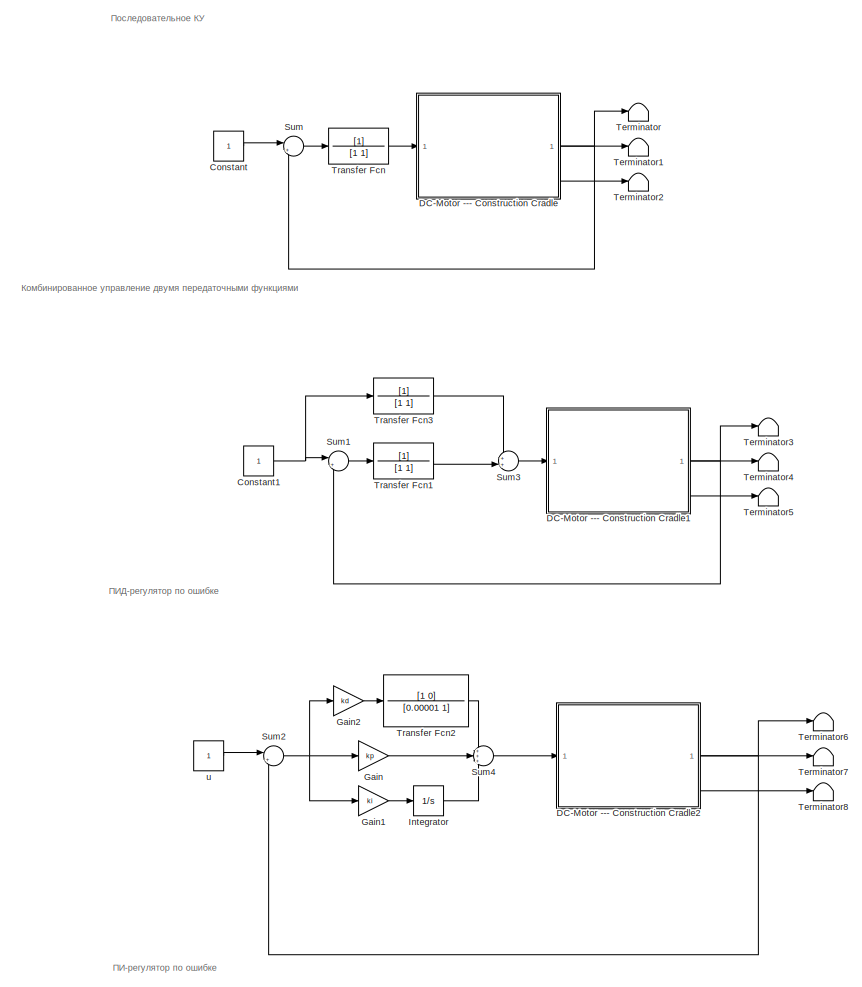
[diagram: root canvas - part 1/2, full width, top band]
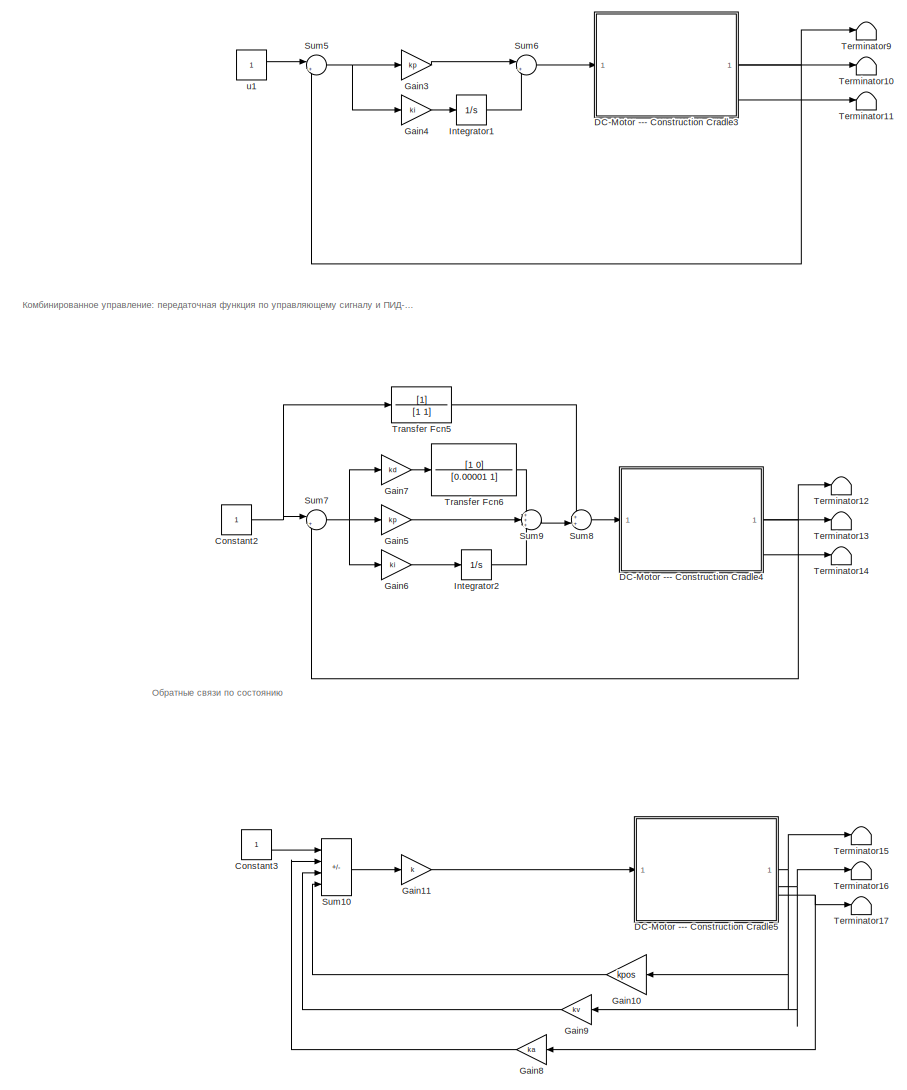
[diagram: root canvas - part 2/2, full width, bottom band]
MODEL slx_43675932367c
KIND model
CONFIG AbsTol = auto
CONFIG EnableMultiTasking = off
CONFIG FixedStep = auto
CONFIG MaxStep = auto
CONFIG MinStep = auto
CONFIG RelTol = 1e-3
CONFIG SampleTimeConstraint = Unconstrained
CONFIG SolverName = VariableStepAuto
CONFIG StartTime = 0.0
CONFIG StopTime = 10.0
BLOCK [Constant] Constant
  Commented = on
BLOCK [Constant] Constant1
  Commented = on
BLOCK [Constant] Constant2
  Commented = on
BLOCK [Constant] Constant3
  Commented = on
BLOCK [SubSystem] DC-Motor --- Construction Cradle
  Commented = on
  J_gear = 0.001
  J_motor = 1e-6
  J_wheel = 5
  L = 0.1
  R = 0.2
  ReferencedSubsystem = ControlObject_demo_22b
  alpha = 5
  i_gear = 100
  km = 1e-3
  kw = 0.2
  r_wheel = 0.1
  veh_mass = 20
  vis_friction_coef_cradle = 0.001
  vis_friction_coef_gear = 0.001
  vis_friction_coef_motor = 0.001
BLOCK [SubSystem] DC-Motor --- Construction Cradle1
  Commented = on
  J_gear = 0.001
  J_motor = 1e-6
  J_wheel = 5
  L = 0.1
  R = 0.2
  ReferencedSubsystem = ControlObject_demo_22b
  alpha = 5
  i_gear = 100
  km = 1e-3
  kw = 0.2
  r_wheel = 0.1
  veh_mass = 20
  vis_friction_coef_cradle = 0.001
  vis_friction_coef_gear = 0.001
  vis_friction_coef_motor = 0.001
BLOCK [SubSystem] DC-Motor --- Construction Cradle2
  Commented = on
  J_gear = 0.001
  J_motor = 1e-6
  J_wheel = 5
  L = 0.1
  R = 0.2
  ReferencedSubsystem = ControlObject_demo_22b
  alpha = 5
  i_gear = 100
  km = 1e-3
  kw = 0.2
  r_wheel = 0.1
  veh_mass = 20
  vis_friction_coef_cradle = 0.001
  vis_friction_coef_gear = 0.001
  vis_friction_coef_motor = 0.001
BLOCK [SubSystem] DC-Motor --- Construction Cradle3
  Commented = on
  J_gear = 0.001
  J_motor = 1e-6
  J_wheel = 5
  L = 0.1
  R = 0.2
  ReferencedSubsystem = ControlObject_demo_22b
  alpha = 5
  i_gear = 100
  km = 1e-3
  kw = 0.2
  r_wheel = 0.1
  veh_mass = 20
  vis_friction_coef_cradle = 0.001
  vis_friction_coef_gear = 0.001
  vis_friction_coef_motor = 0.001
BLOCK [SubSystem] DC-Motor --- Construction Cradle4
  Commented = on
  J_gear = 0.001
  J_motor = 1e-6
  J_wheel = 5
  L = 0.1
  R = 0.2
  ReferencedSubsystem = ControlObject_demo_22b
  alpha = 5
  i_gear = 100
  km = 1e-3
  kw = 0.2
  r_wheel = 0.1
  veh_mass = 20
  vis_friction_coef_cradle = 0.001
  vis_friction_coef_gear = 0.001
  vis_friction_coef_motor = 0.001
BLOCK [SubSystem] DC-Motor --- Construction Cradle5
  Commented = on
  J_gear = 0.001
  J_motor = 1e-6
  J_wheel = 5
  L = 0.1
  R = 0.2
  ReferencedSubsystem = ControlObject_demo_22b
  alpha = 5
  i_gear = 100
  km = 1e-3
  kw = 0.2
  r_wheel = 0.1
  veh_mass = 20
  vis_friction_coef_cradle = 0.001
  vis_friction_coef_gear = 0.001
  vis_friction_coef_motor = 0.001
BLOCK [Gain] Gain
  Commented = on
  Gain = kp
BLOCK [Gain] Gain1
  Commented = on
  Gain = ki
BLOCK [Gain] Gain10
  Commented = on
  Gain = kpos
  NameLocation = top
BLOCK [Gain] Gain11
  Commented = on
  Gain = k
BLOCK [Gain] Gain2
  Commented = on
  Gain = kd
BLOCK [Gain] Gain3
  Commented = on
  Gain = kp
BLOCK [Gain] Gain4
  Commented = on
  Gain = ki
BLOCK [Gain] Gain5
  Commented = on
  Gain = kp
BLOCK [Gain] Gain6
  Commented = on
  Gain = ki
BLOCK [Gain] Gain7
  Commented = on
  Gain = kd
BLOCK [Gain] Gain8
  Commented = on
  Gain = ka
  NameLocation = top
BLOCK [Gain] Gain9
  Commented = on
  Gain = kv
  NameLocation = top
BLOCK [Integrator] Integrator
  Commented = on
BLOCK [Integrator] Integrator1
  Commented = on
BLOCK [Integrator] Integrator2
  Commented = on
BLOCK [Sum] Sum
  Commented = on
  Inputs = |+-
BLOCK [Sum] Sum1
  Commented = on
  Inputs = |+-
BLOCK [Sum] Sum10
  Commented = on
  IconShape = rectangular
  Inputs = +---
BLOCK [Sum] Sum2
  Commented = on
  Inputs = |+-
BLOCK [Sum] Sum3
  Commented = on
  Inputs = ++|
BLOCK [Sum] Sum4
  Commented = on
  Inputs = +++
BLOCK [Sum] Sum5
  Commented = on
  Inputs = |+-
BLOCK [Sum] Sum6
  Commented = on
  Inputs = |++
BLOCK [Sum] Sum7
  Commented = on
  Inputs = |+-
BLOCK [Sum] Sum8
  Commented = on
  Inputs = ++|
BLOCK [Sum] Sum9
  Commented = on
  Inputs = +++
BLOCK [Terminator] Terminator
  Commented = on
BLOCK [Terminator] Terminator1
  Commented = on
BLOCK [Terminator] Terminator10
  Commented = on
BLOCK [Terminator] Terminator11
  Commented = on
BLOCK [Terminator] Terminator12
  Commented = on
BLOCK [Terminator] Terminator13
  Commented = on
BLOCK [Terminator] Terminator14
  Commented = on
BLOCK [Terminator] Terminator15
  Commented = on
BLOCK [Terminator] Terminator16
  Commented = on
BLOCK [Terminator] Terminator17
  Commented = on
BLOCK [Terminator] Terminator2
  Commented = on
BLOCK [Terminator] Terminator3
  Commented = on
BLOCK [Terminator] Terminator4
  Commented = on
BLOCK [Terminator] Terminator5
  Commented = on
BLOCK [Terminator] Terminator6
  Commented = on
BLOCK [Terminator] Terminator7
  Commented = on
BLOCK [Terminator] Terminator8
  Commented = on
BLOCK [Terminator] Terminator9
  Commented = on
BLOCK [TransferFcn] Transfer Fcn
  Commented = on
  Denominator = [1 1]
BLOCK [TransferFcn] Transfer Fcn1
  Commented = on
  Denominator = [1 1]
BLOCK [TransferFcn] Transfer Fcn2
  Commented = on
  Denominator = [0.00001 1]
  Numerator = [1 0]
BLOCK [TransferFcn] Transfer Fcn3
  Commented = on
  Denominator = [1 1]
BLOCK [TransferFcn] Transfer Fcn5
  Commented = on
  Denominator = [1 1]
BLOCK [TransferFcn] Transfer Fcn6
  Commented = on
  Denominator = [0.00001 1]
  Numerator = [1 0]
BLOCK [Constant] u
  Commented = on
BLOCK [Constant] u1
  Commented = on
ANNOTATION (root): Комбинированное управление двумя передаточными функциями
ANNOTATION (root): Комбинированное управление: передаточная функция по управляющему сигналу и ПИД-регулятор по ошибке
ANNOTATION (root): Обратные связи по состоянию
ANNOTATION (root): ПИ-регулятор по ошибке
ANNOTATION (root): ПИД-регулятор по ошибке
ANNOTATION (root): Последовательное КУ
NET Constant1:1 -> Sum1:1, Transfer Fcn3:1
NET Constant2:1 -> Sum7:1, Transfer Fcn5:1
LINE Constant3:1 -> Sum10:1
LINE Constant:1 -> Sum:1
NET DC-Motor --- Construction Cradle1:1 -> Sum1:2, Terminator3:1
LINE DC-Motor --- Construction Cradle1:2 -> Terminator4:1
LINE DC-Motor --- Construction Cradle1:3 -> Terminator5:1
NET DC-Motor --- Construction Cradle2:1 -> Sum2:2, Terminator6:1
LINE DC-Motor --- Construction Cradle2:2 -> Terminator7:1
LINE DC-Motor --- Construction Cradle2:3 -> Terminator8:1
NET DC-Motor --- Construction Cradle3:1 -> Sum5:2, Terminator9:1
LINE DC-Motor --- Construction Cradle3:2 -> Terminator10:1
LINE DC-Motor --- Construction Cradle3:3 -> Terminator11:1
NET DC-Motor --- Construction Cradle4:1 -> Sum7:2, Terminator12:1
LINE DC-Motor --- Construction Cradle4:2 -> Terminator13:1
LINE DC-Motor --- Construction Cradle4:3 -> Terminator14:1
NET DC-Motor --- Construction Cradle5:1 -> Gain10:1, Terminator15:1
NET DC-Motor --- Construction Cradle5:2 -> Gain9:1, Terminator16:1
NET DC-Motor --- Construction Cradle5:3 -> Gain8:1, Terminator17:1
NET DC-Motor --- Construction Cradle:1 -> Sum:2, Terminator:1
LINE DC-Motor --- Construction Cradle:2 -> Terminator1:1
LINE DC-Motor --- Construction Cradle:3 -> Terminator2:1
LINE Gain10:1 -> Sum10:4
LINE Gain11:1 -> DC-Motor --- Construction Cradle5:1
LINE Gain1:1 -> Integrator:1
LINE Gain2:1 -> Transfer Fcn2:1
LINE Gain3:1 -> Sum6:1
LINE Gain4:1 -> Integrator1:1
LINE Gain5:1 -> Sum9:2
LINE Gain6:1 -> Integrator2:1
LINE Gain7:1 -> Transfer Fcn6:1
LINE Gain8:1 -> Sum10:2
LINE Gain9:1 -> Sum10:3
LINE Gain:1 -> Sum4:2
LINE Integrator1:1 -> Sum6:2
LINE Integrator2:1 -> Sum9:3
LINE Integrator:1 -> Sum4:3
LINE Sum10:1 -> Gain11:1
LINE Sum1:1 -> Transfer Fcn1:1
NET Sum2:1 -> Gain1:1, Gain2:1, Gain:1
LINE Sum3:1 -> DC-Motor --- Construction Cradle1:1
LINE Sum4:1 -> DC-Motor --- Construction Cradle2:1
NET Sum5:1 -> Gain3:1, Gain4:1
LINE Sum6:1 -> DC-Motor --- Construction Cradle3:1
NET Sum7:1 -> Gain5:1, Gain6:1, Gain7:1
LINE Sum8:1 -> DC-Motor --- Construction Cradle4:1
LINE Sum9:1 -> Sum8:2
LINE Sum:1 -> Transfer Fcn:1
LINE Transfer Fcn1:1 -> Sum3:2
LINE Transfer Fcn2:1 -> Sum4:1
LINE Transfer Fcn3:1 -> Sum3:1
LINE Transfer Fcn5:1 -> Sum8:1
LINE Transfer Fcn6:1 -> Sum9:1
LINE Transfer Fcn:1 -> DC-Motor --- Construction Cradle:1
LINE u1:1 -> Sum5:1
LINE u:1 -> Sum2:1
note: NET lines group one-source signal fan-out (src -> all destinations, sorted); 1:1 wires keep LINE
